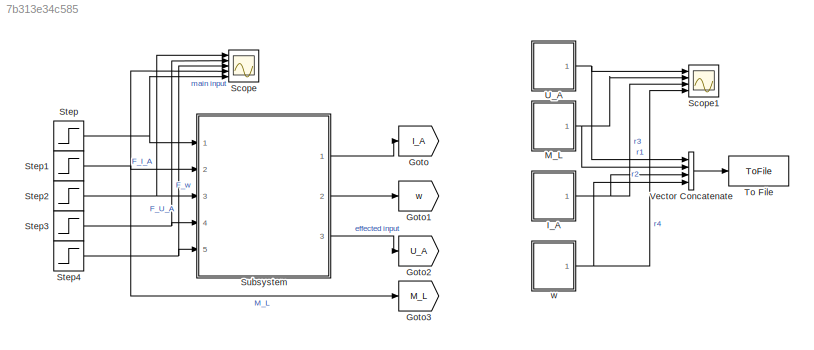
MODEL slx_7b313e34c585
KIND model
CONFIG AbsTol = auto
CONFIG EnableMultiTasking = on
CONFIG FixedStep = auto
CONFIG MaxStep = auto
CONFIG MinStep = auto
CONFIG RelTol = 1e-3
CONFIG SampleTimeConstraint = Unconstrained
CONFIG SolverName = ode45
CONFIG StartTime = 0.0
CONFIG StopTime = 5
BLOCK [Goto] Goto
  GotoTag = I_A
  TagVisibility = global
BLOCK [Goto] Goto1
  GotoTag = w
  TagVisibility = global
BLOCK [Goto] Goto2
  GotoTag = U_A
  TagVisibility = global
BLOCK [Goto] Goto3
  GotoTag = M_L
  TagVisibility = global
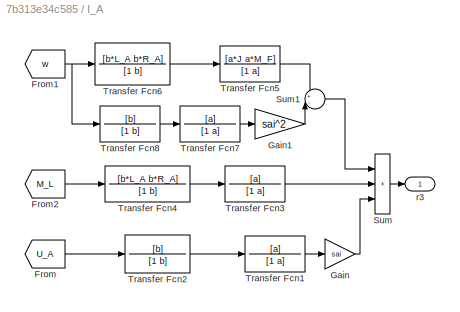
BLOCK [SubSystem] I_A
  Ports = [0, 1]
  RequestExecContextInheritance = off
BLOCK [From] I_A/From
  GotoTag = U_A
  TagVisibility = global
BLOCK [From] I_A/From1
  GotoTag = w
  TagVisibility = global
BLOCK [From] I_A/From2
  GotoTag = M_L
  TagVisibility = global
BLOCK [Gain] I_A/Gain
  Gain = sai
BLOCK [Gain] I_A/Gain1
  Gain = sai^2
BLOCK [Sum] I_A/Sum
  IconShape = rectangular
  Inputs = +++
  Ports = [3, 1]
BLOCK [Sum] I_A/Sum1
  Inputs = +-
  Ports = [2, 1]
BLOCK [TransferFcn] I_A/Transfer Fcn1
  Denominator = [1 a]
  Numerator = [a]
BLOCK [TransferFcn] I_A/Transfer Fcn2
  Denominator = [1 b]
  Numerator = [b]
BLOCK [TransferFcn] I_A/Transfer Fcn3
  Denominator = [1 a]
  Numerator = [a]
BLOCK [TransferFcn] I_A/Transfer Fcn4
  Denominator = [1 b]
  Numerator = [b*L_A b*R_A]
BLOCK [TransferFcn] I_A/Transfer Fcn5
  Denominator = [1 a]
  Numerator = [a*J a*M_F]
BLOCK [TransferFcn] I_A/Transfer Fcn6
  Denominator = [1 b]
  Numerator = [b*L_A b*R_A]
BLOCK [TransferFcn] I_A/Transfer Fcn7
  Denominator = [1 a]
  Numerator = [a]
BLOCK [TransferFcn] I_A/Transfer Fcn8
  Denominator = [1 b]
  Numerator = [b]
BLOCK [Outport] I_A/r3 
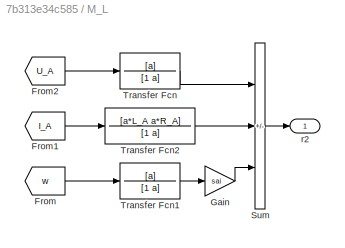
BLOCK [SubSystem] M_L
  Ports = [0, 1]
  RequestExecContextInheritance = off
BLOCK [From] M_L/From
  GotoTag = w
  TagVisibility = global
BLOCK [From] M_L/From1
  GotoTag = I_A
  TagVisibility = global
BLOCK [From] M_L/From2
  GotoTag = U_A
  TagVisibility = global
BLOCK [Gain] M_L/Gain
  Gain = sai
BLOCK [Sum] M_L/Sum
  IconShape = rectangular
  Inputs = -++
  Ports = [3, 1]
BLOCK [TransferFcn] M_L/Transfer Fcn
  Denominator = [1 a]
  Numerator = [a]
BLOCK [TransferFcn] M_L/Transfer Fcn1
  Denominator = [1 a]
  Numerator = [a]
BLOCK [TransferFcn] M_L/Transfer Fcn2
  Denominator = [1 a]
  Numerator = [a*L_A a*R_A]
BLOCK [Outport] M_L/r2 
BLOCK [Scope] Scope
  Floating = off
  NumInputPorts = 5
  Ports = [5]
  ScopeSpecificationString = Simulink.scopes.TimeScopeBlockCfg('CurrentConfiguration', extmgr.ConfigurationSet(extmgr.Configuration('Core','General UI',true),extmgr.Configuration('Core','Source UI',true),extmgr.Configuration('Sources','WiredSimulink',true),extmgr.Configuration('Visuals','Time Domain',true,'SerializedDisplays',{struct('MinYLimReal','-1.00000','MaxYLimReal','1.00000','YLabelReal','','MinYLimMag','0.00000','MaxY...<+4752ch>
BLOCK [Scope] Scope1
  Floating = off
  NumInputPorts = 4
  Ports = [4]
  ScopeSpecificationString = Simulink.scopes.TimeScopeBlockCfg('CurrentConfiguration', extmgr.ConfigurationSet(extmgr.Configuration('Core','General UI',true),extmgr.Configuration('Core','Source UI',true),extmgr.Configuration('Sources','WiredSimulink',true,'DataLoggingVariableName','ScopeData1'),extmgr.Configuration('Visuals','Time Domain',true,'SerializedDisplays',{struct('MinYLimReal','-1.00000','MaxYLimReal','1.00000','YLab...<+3341ch>
BLOCK [Step] Step
  After = 0
  SampleTime = 0
  Time = 0
BLOCK [Step] Step1
  After = 0
  SampleTime = 0
  Time = 0
BLOCK [Step] Step2
  After = 0
  SampleTime = 0
  Time = 0
BLOCK [Step] Step3
  After = 0
  SampleTime = 0
  Time = 0
BLOCK [Step] Step4
  After = 2
  SampleTime = 0
  Time = 2
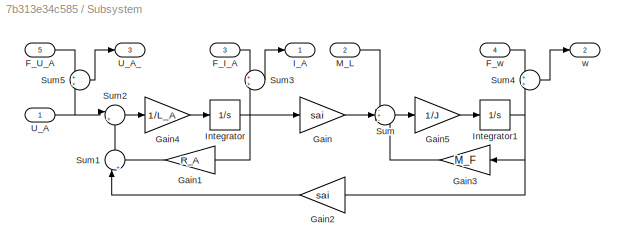
BLOCK [SubSystem] Subsystem
  Ports = [5, 3]
  RequestExecContextInheritance = off
BLOCK [Inport] Subsystem/F_I_A
  Port = 3
BLOCK [Inport] Subsystem/F_U_A
  Port = 5
BLOCK [Inport] Subsystem/F_w
  Port = 4
BLOCK [Gain] Subsystem/Gain
  Gain = sai
BLOCK [Gain] Subsystem/Gain1
  Gain = R_A
BLOCK [Gain] Subsystem/Gain2
  Gain = sai
BLOCK [Gain] Subsystem/Gain3
  Gain = M_F
BLOCK [Gain] Subsystem/Gain4
  Gain = 1/L_A
BLOCK [Gain] Subsystem/Gain5
  Gain = 1/J
BLOCK [Outport] Subsystem/I_A
BLOCK [Integrator] Subsystem/Integrator
  Ports = [1, 1]
BLOCK [Integrator] Subsystem/Integrator1
  Ports = [1, 1]
BLOCK [Inport] Subsystem/M_L
  Port = 2
BLOCK [Sum] Subsystem/Sum
  Inputs = -+-
  Ports = [3, 1]
BLOCK [Sum] Subsystem/Sum1
  Inputs = |++
  NameLocation = right
  Ports = [2, 1]
BLOCK [Sum] Subsystem/Sum2
  Inputs = |+-
  Ports = [2, 1]
BLOCK [Sum] Subsystem/Sum3
  Ports = [2, 1]
BLOCK [Sum] Subsystem/Sum4
  Ports = [2, 1]
BLOCK [Sum] Subsystem/Sum5
  Ports = [2, 1]
BLOCK [Inport] Subsystem/U_A
BLOCK [Outport] Subsystem/U_A_
  Port = 3
BLOCK [Outport] Subsystem/w
  Port = 2
BLOCK [ToFile] To File
  Filename = r.mat
  Ports = [1]
  SaveFormat = Timeseries
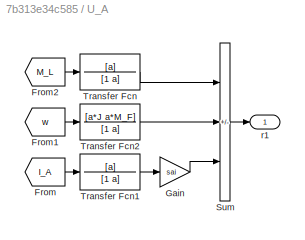
BLOCK [SubSystem] U_A
  Ports = [0, 1]
  RequestExecContextInheritance = off
BLOCK [From] U_A/From
  GotoTag = I_A
  TagVisibility = global
BLOCK [From] U_A/From1
  GotoTag = w
  TagVisibility = global
BLOCK [From] U_A/From2
  GotoTag = M_L
  TagVisibility = global
BLOCK [Gain] U_A/Gain
  Gain = sai
BLOCK [Sum] U_A/Sum
  IconShape = rectangular
  Inputs = ++-
  Ports = [3, 1]
BLOCK [TransferFcn] U_A/Transfer Fcn
  Denominator = [1 a]
  Numerator = [a]
BLOCK [TransferFcn] U_A/Transfer Fcn1
  Denominator = [1 a]
  Numerator = [a]
BLOCK [TransferFcn] U_A/Transfer Fcn2
  Denominator = [1 a]
  Numerator = [a*J a*M_F]
BLOCK [Outport] U_A/r1 
BLOCK [Concatenate] Vector Concatenate
  NumInputs = 4
  Ports = [4, 1]
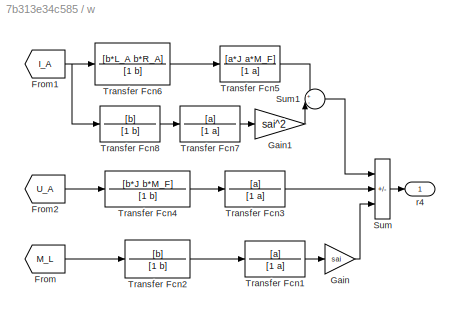
BLOCK [SubSystem] w
  Ports = [0, 1]
  RequestExecContextInheritance = off
BLOCK [From] w/From
  GotoTag = M_L
  TagVisibility = global
BLOCK [From] w/From1
  GotoTag = I_A
  TagVisibility = global
BLOCK [From] w/From2
  GotoTag = U_A
  TagVisibility = global
BLOCK [Gain] w/Gain
  Gain = sai
BLOCK [Gain] w/Gain1
  Gain = sai^2
BLOCK [Sum] w/Sum
  IconShape = rectangular
  Inputs = +--
  Ports = [3, 1]
BLOCK [Sum] w/Sum1
  Inputs = +-
  Ports = [2, 1]
BLOCK [TransferFcn] w/Transfer Fcn1
  Denominator = [1 a]
  Numerator = [a]
BLOCK [TransferFcn] w/Transfer Fcn2
  Denominator = [1 b]
  Numerator = [b]
BLOCK [TransferFcn] w/Transfer Fcn3
  Denominator = [1 a]
  Numerator = [a]
BLOCK [TransferFcn] w/Transfer Fcn4
  Denominator = [1 b]
  Numerator = [b*J b*M_F]
BLOCK [TransferFcn] w/Transfer Fcn5
  Denominator = [1 a]
  Numerator = [a*J a*M_F]
BLOCK [TransferFcn] w/Transfer Fcn6
  Denominator = [1 b]
  Numerator = [b*L_A b*R_A]
BLOCK [TransferFcn] w/Transfer Fcn7
  Denominator = [1 a]
  Numerator = [a]
BLOCK [TransferFcn] w/Transfer Fcn8
  Denominator = [1 b]
  Numerator = [b]
BLOCK [Outport] w/r4 
NET I_A/From1:1 -> I_A/Transfer Fcn6:1, I_A/Transfer Fcn8:1
LINE I_A/From2:1 -> I_A/Transfer Fcn4:1
LINE I_A/From:1 -> I_A/Transfer Fcn2:1
LINE I_A/Gain1:1 -> I_A/Sum1:2
LINE I_A/Gain:1 -> I_A/Sum:3
LINE I_A/Sum1:1 -> I_A/Sum:1
LINE I_A/Sum:1 -> I_A/r3 :1
LINE I_A/Transfer Fcn1:1 -> I_A/Gain:1
LINE I_A/Transfer Fcn2:1 -> I_A/Transfer Fcn1:1
LINE I_A/Transfer Fcn3:1 -> I_A/Sum:2
LINE I_A/Transfer Fcn4:1 -> I_A/Transfer Fcn3:1
LINE I_A/Transfer Fcn5:1 -> I_A/Sum1:1
LINE I_A/Transfer Fcn6:1 -> I_A/Transfer Fcn5:1
LINE I_A/Transfer Fcn7:1 -> I_A/Gain1:1
LINE I_A/Transfer Fcn8:1 -> I_A/Transfer Fcn7:1
NET I_A:1 -> Scope1:3, Vector Concatenate:3
LINE M_L/From1:1 -> M_L/Transfer Fcn2:1
LINE M_L/From2:1 -> M_L/Transfer Fcn:1
LINE M_L/From:1 -> M_L/Transfer Fcn1:1
LINE M_L/Gain:1 -> M_L/Sum:3
LINE M_L/Sum:1 -> M_L/r2 :1
LINE M_L/Transfer Fcn1:1 -> M_L/Gain:1
LINE M_L/Transfer Fcn2:1 -> M_L/Sum:2
LINE M_L/Transfer Fcn:1 -> M_L/Sum:1
NET M_L:1 -> Scope1:2, Vector Concatenate:2
NET Step1:1 -> Goto3:1, Scope:4, Subsystem:2
NET Step2:1 -> Scope:1, Subsystem:3
NET Step3:1 -> Scope:2, Subsystem:4
NET Step4:1 -> Scope:3, Subsystem:5
NET Step:1 -> Scope:5, Subsystem:1
LINE Subsystem/F_I_A:1 -> Subsystem/Sum3:1
LINE Subsystem/F_U_A:1 -> Subsystem/Sum5:1
LINE Subsystem/F_w:1 -> Subsystem/Sum4:1
LINE Subsystem/Gain1:1 -> Subsystem/Sum1:2
LINE Subsystem/Gain2:1 -> Subsystem/Sum1:1
LINE Subsystem/Gain3:1 -> Subsystem/Sum:3
LINE Subsystem/Gain4:1 -> Subsystem/Integrator:1
LINE Subsystem/Gain5:1 -> Subsystem/Integrator1:1
LINE Subsystem/Gain:1 -> Subsystem/Sum:2
NET Subsystem/Integrator1:1 -> Subsystem/Gain2:1, Subsystem/Gain3:1, Subsystem/Sum4:2
NET Subsystem/Integrator:1 -> Subsystem/Gain1:1, Subsystem/Gain:1, Subsystem/Sum3:2
LINE Subsystem/M_L:1 -> Subsystem/Sum:1
LINE Subsystem/Sum1:1 -> Subsystem/Sum2:2
LINE Subsystem/Sum2:1 -> Subsystem/Gain4:1
LINE Subsystem/Sum3:1 -> Subsystem/I_A:1
LINE Subsystem/Sum4:1 -> Subsystem/w:1
LINE Subsystem/Sum5:1 -> Subsystem/U_A_:1
LINE Subsystem/Sum:1 -> Subsystem/Gain5:1
NET Subsystem/U_A:1 -> Subsystem/Sum2:1, Subsystem/Sum5:2
LINE Subsystem:1 -> Goto:1
LINE Subsystem:2 -> Goto1:1
LINE Subsystem:3 -> Goto2:1
LINE U_A/From1:1 -> U_A/Transfer Fcn2:1
LINE U_A/From2:1 -> U_A/Transfer Fcn:1
LINE U_A/From:1 -> U_A/Transfer Fcn1:1
LINE U_A/Gain:1 -> U_A/Sum:3
LINE U_A/Sum:1 -> U_A/r1 :1
LINE U_A/Transfer Fcn1:1 -> U_A/Gain:1
LINE U_A/Transfer Fcn2:1 -> U_A/Sum:2
LINE U_A/Transfer Fcn:1 -> U_A/Sum:1
NET U_A:1 -> Scope1:1, Vector Concatenate:1
LINE Vector Concatenate:1 -> To File:1
NET w/From1:1 -> w/Transfer Fcn6:1, w/Transfer Fcn8:1
LINE w/From2:1 -> w/Transfer Fcn4:1
LINE w/From:1 -> w/Transfer Fcn2:1
LINE w/Gain1:1 -> w/Sum1:2
LINE w/Gain:1 -> w/Sum:3
LINE w/Sum1:1 -> w/Sum:1
LINE w/Sum:1 -> w/r4 :1
LINE w/Transfer Fcn1:1 -> w/Gain:1
LINE w/Transfer Fcn2:1 -> w/Transfer Fcn1:1
LINE w/Transfer Fcn3:1 -> w/Sum:2
LINE w/Transfer Fcn4:1 -> w/Transfer Fcn3:1
LINE w/Transfer Fcn5:1 -> w/Sum1:1
LINE w/Transfer Fcn6:1 -> w/Transfer Fcn5:1
LINE w/Transfer Fcn7:1 -> w/Gain1:1
LINE w/Transfer Fcn8:1 -> w/Transfer Fcn7:1
NET w:1 -> Scope1:4, Vector Concatenate:4
note: NET lines group one-source signal fan-out (src -> all destinations, sorted); 1:1 wires keep LINE
